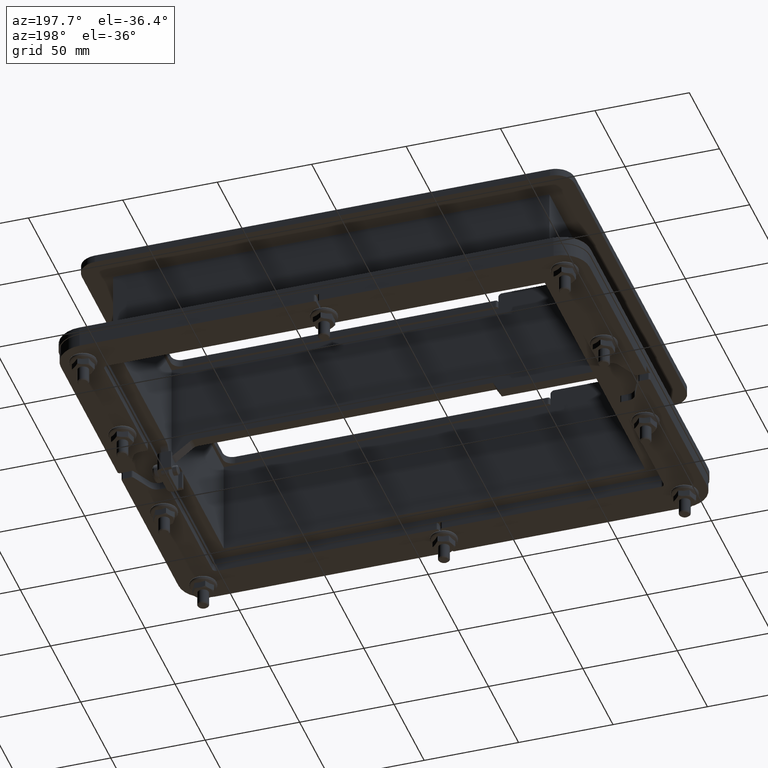
[diagram: clean part render]
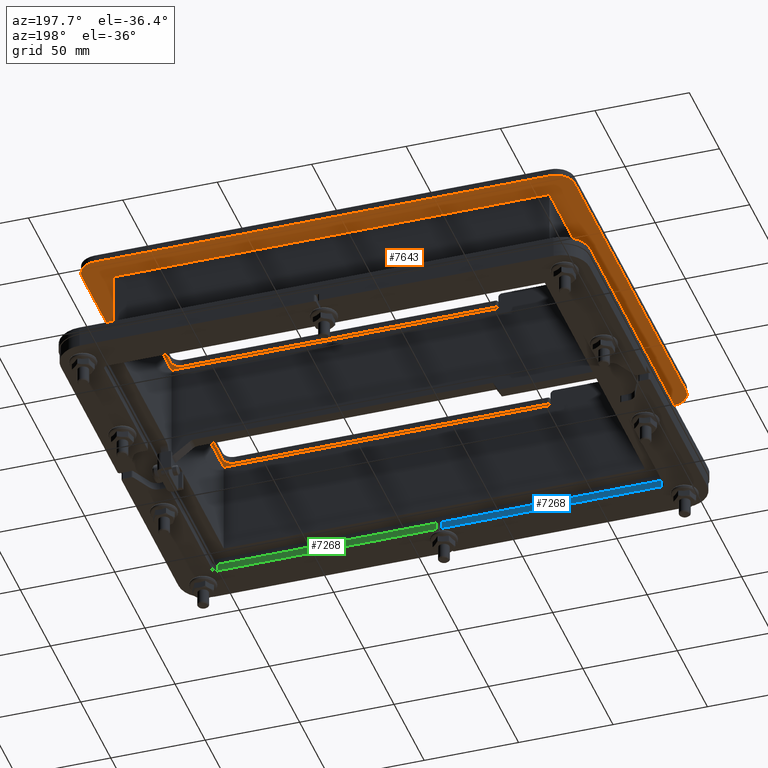
[diagram: same view with three faces highlighted in distinct colors, each labeled with its STEP entity id]
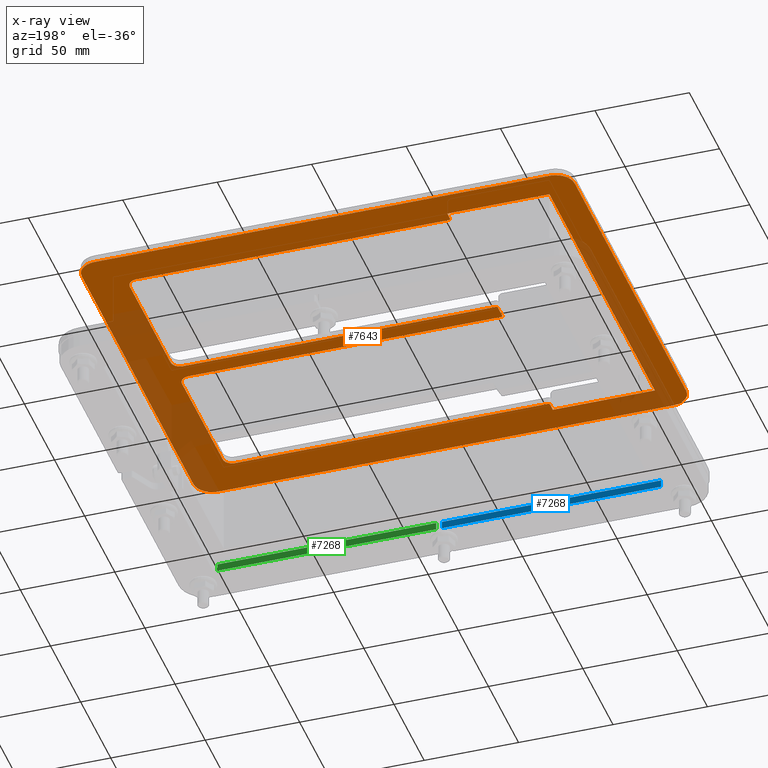
[diagram: x-ray of the same camera — body ghosted, the three highlighted faces saturated]
A machine part, auxiliary view with three faces highlighted in distinct colors.
The next image is the same camera in x-ray (body ghosted, the three faces saturated) — at least one of them is partly hidden behind the body in this view.
Their STEP definitions:

[orange] entity #7643 — the highlighted planar face has unit normal (0, -0, -1).
#525=FACE_BOUND('',#1636,.T.);
#758=PLANE('',#8488);
#1152=FACE_OUTER_BOUND('',#1635,.T.);
#1635=EDGE_LOOP('',(#7053,#7054,#7055,#7056,#7057,#7058,#7059,#7060));
#1636=EDGE_LOOP('',(#7061,#7062,#7063,#7064,#7065,#7066,#7067,#7068,#7069,
#7070,#7071,#7072,#7073,#7074,#7075,#7076,#7077,#7078,#7079,#7080));
#2339=LINE('',#13595,#3056);
#2341=LINE('',#13599,#3058);
#2342=LINE('',#13603,#3059);
#2343=LINE('',#13607,#3060);
#2344=LINE('',#13611,#3061);
#2345=LINE('',#13615,#3062);
#2346=LINE('',#13619,#3063);
#2347=LINE('',#13623,#3064);
#2348=LINE('',#13625,#3065);
#2349=LINE('',#13627,#3066);
#2350=LINE('',#13629,#3067);
#2351=LINE('',#13631,#3068);
#2352=LINE('',#13635,#3069);
#2353=LINE('',#13639,#3070);
#2354=LINE('',#13643,#3071);
#2355=LINE('',#13647,#3072);
#3056=VECTOR('',#10282,10.);
#3058=VECTOR('',#10286,10.);
#3059=VECTOR('',#10289,10.);
#3060=VECTOR('',#10292,10.);
#3061=VECTOR('',#10295,10.);
#3062=VECTOR('',#10298,10.);
#3063=VECTOR('',#10301,10.);
#3064=VECTOR('',#10304,10.);
#3065=VECTOR('',#10305,10.);
#3066=VECTOR('',#10306,10.);
#3067=VECTOR('',#10307,10.);
#3068=VECTOR('',#10308,10.);
#3069=VECTOR('',#10311,10.);
#3070=VECTOR('',#10314,10.);
#3071=VECTOR('',#10317,10.);
#3072=VECTOR('',#10320,10.);
#3276=CIRCLE('',#8486,10.);
#3277=CIRCLE('',#8489,10.);
#3278=CIRCLE('',#8490,10.);
#3279=CIRCLE('',#8491,10.);
#3280=CIRCLE('',#8492,5.);
#3281=CIRCLE('',#8493,5.);
#3282=CIRCLE('',#8494,1.);
#3283=CIRCLE('',#8495,1.);
#3284=CIRCLE('',#8496,5.);
#3285=CIRCLE('',#8497,5.);
#3286=CIRCLE('',#8498,1.);
#3287=CIRCLE('',#8499,1.);
#3969=VERTEX_POINT('',#13588);
#3970=VERTEX_POINT('',#13590);
#3971=VERTEX_POINT('',#13594);
#3972=VERTEX_POINT('',#13598);
#3973=VERTEX_POINT('',#13600);
#3974=VERTEX_POINT('',#13602);
#3975=VERTEX_POINT('',#13604);
#3976=VERTEX_POINT('',#13606);
#3977=VERTEX_POINT('',#13609);
#3978=VERTEX_POINT('',#13610);
#3979=VERTEX_POINT('',#13612);
#3980=VERTEX_POINT('',#13614);
#3981=VERTEX_POINT('',#13616);
#3982=VERTEX_POINT('',#13618);
#3983=VERTEX_POINT('',#13620);
#3984=VERTEX_POINT('',#13622);
#3985=VERTEX_POINT('',#13624);
#3986=VERTEX_POINT('',#13626);
#3987=VERTEX_POINT('',#13628);
#3988=VERTEX_POINT('',#13630);
#3989=VERTEX_POINT('',#13632);
#3990=VERTEX_POINT('',#13634);
#3991=VERTEX_POINT('',#13636);
#3992=VERTEX_POINT('',#13638);
#3993=VERTEX_POINT('',#13640);
#3994=VERTEX_POINT('',#13642);
#3995=VERTEX_POINT('',#13644);
#3996=VERTEX_POINT('',#13646);
#5007=EDGE_CURVE('',#3969,#3970,#3276,.T.);
#5009=EDGE_CURVE('',#3970,#3971,#2339,.T.);
#5011=EDGE_CURVE('',#3972,#3969,#2341,.T.);
#5012=EDGE_CURVE('',#3973,#3972,#3277,.T.);
#5013=EDGE_CURVE('',#3973,#3974,#2342,.F.);
#5014=EDGE_CURVE('',#3975,#3974,#3278,.T.);
#5015=EDGE_CURVE('',#3975,#3976,#2343,.F.);
#5016=EDGE_CURVE('',#3971,#3976,#3279,.T.);
#5017=EDGE_CURVE('',#3977,#3978,#2344,.F.);
#5018=EDGE_CURVE('',#3979,#3978,#3280,.T.);
#5019=EDGE_CURVE('',#3979,#3980,#2345,.F.);
#5020=EDGE_CURVE('',#3981,#3980,#3281,.T.);
#5021=EDGE_CURVE('',#3981,#3982,#2346,.T.);
#5022=EDGE_CURVE('',#3983,#3982,#3282,.T.);
#5023=EDGE_CURVE('',#3983,#3984,#2347,.F.);
#5024=EDGE_CURVE('',#3985,#3984,#2348,.T.);
#5025=EDGE_CURVE('',#3986,#3985,#2349,.T.);
#5026=EDGE_CURVE('',#3987,#3986,#2350,.T.);
#5027=EDGE_CURVE('',#3987,#3988,#2351,.F.);
#5028=EDGE_CURVE('',#3989,#3988,#3283,.T.);
#5029=EDGE_CURVE('',#3989,#3990,#2352,.T.);
#5030=EDGE_CURVE('',#3991,#3990,#3284,.T.);
#5031=EDGE_CURVE('',#3991,#3992,#2353,.F.);
#5032=EDGE_CURVE('',#3993,#3992,#3285,.T.);
#5033=EDGE_CURVE('',#3993,#3994,#2354,.F.);
#5034=EDGE_CURVE('',#3995,#3994,#3286,.T.);
#5035=EDGE_CURVE('',#3995,#3996,#2355,.F.);
#5036=EDGE_CURVE('',#3977,#3996,#3287,.T.);
#7053=ORIENTED_EDGE('',*,*,#5007,.F.);
#7054=ORIENTED_EDGE('',*,*,#5011,.F.);
#7055=ORIENTED_EDGE('',*,*,#5012,.F.);
#7056=ORIENTED_EDGE('',*,*,#5013,.T.);
#7057=ORIENTED_EDGE('',*,*,#5014,.F.);
#7058=ORIENTED_EDGE('',*,*,#5015,.T.);
#7059=ORIENTED_EDGE('',*,*,#5016,.F.);
#7060=ORIENTED_EDGE('',*,*,#5009,.F.);
#7061=ORIENTED_EDGE('',*,*,#5017,.T.);
#7062=ORIENTED_EDGE('',*,*,#5018,.F.);
#7063=ORIENTED_EDGE('',*,*,#5019,.T.);
#7064=ORIENTED_EDGE('',*,*,#5020,.F.);
#7065=ORIENTED_EDGE('',*,*,#5021,.T.);
#7066=ORIENTED_EDGE('',*,*,#5022,.F.);
#7067=ORIENTED_EDGE('',*,*,#5023,.T.);
#7068=ORIENTED_EDGE('',*,*,#5024,.F.);
#7069=ORIENTED_EDGE('',*,*,#5025,.F.);
#7070=ORIENTED_EDGE('',*,*,#5026,.F.);
#7071=ORIENTED_EDGE('',*,*,#5027,.T.);
#7072=ORIENTED_EDGE('',*,*,#5028,.F.);
#7073=ORIENTED_EDGE('',*,*,#5029,.T.);
#7074=ORIENTED_EDGE('',*,*,#5030,.F.);
#7075=ORIENTED_EDGE('',*,*,#5031,.T.);
#7076=ORIENTED_EDGE('',*,*,#5032,.F.);
#7077=ORIENTED_EDGE('',*,*,#5033,.T.);
#7078=ORIENTED_EDGE('',*,*,#5034,.F.);
#7079=ORIENTED_EDGE('',*,*,#5035,.T.);
#7080=ORIENTED_EDGE('',*,*,#5036,.F.);
#7643=ADVANCED_FACE('',(#1152,#525),#758,.T.);
#8486=AXIS2_PLACEMENT_3D('',#13591,#10277,#10278);
#8488=AXIS2_PLACEMENT_3D('',#13597,#10284,#10285);
#8489=AXIS2_PLACEMENT_3D('',#13601,#10287,#10288);
#8490=AXIS2_PLACEMENT_3D('',#13605,#10290,#10291);
#8491=AXIS2_PLACEMENT_3D('',#13608,#10293,#10294);
#8492=AXIS2_PLACEMENT_3D('',#13613,#10296,#10297);
#8493=AXIS2_PLACEMENT_3D('',#13617,#10299,#10300);
#8494=AXIS2_PLACEMENT_3D('',#13621,#10302,#10303);
#8495=AXIS2_PLACEMENT_3D('',#13633,#10309,#10310);
#8496=AXIS2_PLACEMENT_3D('',#13637,#10312,#10313);
#8497=AXIS2_PLACEMENT_3D('',#13641,#10315,#10316);
#8498=AXIS2_PLACEMENT_3D('',#13645,#10318,#10319);
#8499=AXIS2_PLACEMENT_3D('',#13648,#10321,#10322);
#10277=DIRECTION('center_axis',(0.,0.,1.));
#10278=DIRECTION('ref_axis',(-0.707106781186547,-0.707106781186547,0.));
#10282=DIRECTION('',(1.,1.03276560430247E-16,0.));
#10284=DIRECTION('center_axis',(0.,0.,-1.));
#10285=DIRECTION('ref_axis',(-1.,0.,0.));
#10286=DIRECTION('',(0.,-1.,0.));
#10287=DIRECTION('center_axis',(0.,0.,1.));
#10288=DIRECTION('ref_axis',(-0.707106781186547,0.707106781186547,0.));
#10289=DIRECTION('',(-1.,-5.16382802151236E-16,0.));
#10290=DIRECTION('center_axis',(0.,0.,1.));
#10291=DIRECTION('ref_axis',(0.707106781186547,0.707106781186547,0.));
#10292=DIRECTION('',(-3.04518315325757E-16,1.,0.));
#10293=DIRECTION('center_axis',(0.,0.,1.));
#10294=DIRECTION('ref_axis',(0.707106781186547,-0.707106781186547,0.));
#10295=DIRECTION('',(-1.,6.01928145881109E-17,0.));
#10296=DIRECTION('center_axis',(0.,0.,-1.));
#10297=DIRECTION('ref_axis',(0.707106781186548,-0.707106781186547,0.));
#10298=DIRECTION('',(1.77635683940025E-15,-1.,0.));
#10299=DIRECTION('center_axis',(0.,0.,-1.));
#10300=DIRECTION('ref_axis',(0.707106781186547,0.707106781186547,0.));
#10301=DIRECTION('',(-1.,-5.35047240783208E-16,0.));
#10302=DIRECTION('center_axis',(0.,0.,1.));
#10303=DIRECTION('ref_axis',(-0.707106781186548,-0.707106781186548,0.));
#10304=DIRECTION('',(2.22044604925031E-15,-1.,0.));
#10305=DIRECTION('',(1.,0.,0.));
#10306=DIRECTION('',(-2.03012210217171E-16,1.,0.));
#10307=DIRECTION('',(-1.,0.,0.));
#10308=DIRECTION('',(-2.22044604925031E-15,-1.,0.));
#10309=DIRECTION('center_axis',(0.,0.,1.));
#10310=DIRECTION('ref_axis',(-0.707106781186548,0.707106781186548,0.));
#10311=DIRECTION('',(1.,0.,0.));
#10312=DIRECTION('center_axis',(0.,0.,-1.));
#10313=DIRECTION('ref_axis',(0.707106781186547,-0.707106781186547,0.));
#10314=DIRECTION('',(1.77635683940025E-15,-1.,0.));
#10315=DIRECTION('center_axis',(0.,0.,-1.));
#10316=DIRECTION('ref_axis',(0.707106781186547,0.707106781186548,0.));
#10317=DIRECTION('',(1.,-1.77234398509438E-16,0.));
#10318=DIRECTION('center_axis',(0.,0.,1.));
#10319=DIRECTION('ref_axis',(-0.707106781186552,-0.707106781186543,0.));
#10320=DIRECTION('',(0.,-1.,0.));
#10321=DIRECTION('center_axis',(0.,0.,1.));
#10322=DIRECTION('ref_axis',(-0.707106781186553,0.707106781186542,0.));
#13588=CARTESIAN_POINT('',(-153.4,-92.5,-2.));
#13590=CARTESIAN_POINT('',(-143.4,-102.5,-2.));
#13591=CARTESIAN_POINT('Origin',(-143.4,-92.5,-2.));
#13594=CARTESIAN_POINT('',(97.6000000000001,-102.5,-2.));
#13595=CARTESIAN_POINT('',(-41.4999999999999,-102.5,-2.));
#13597=CARTESIAN_POINT('Origin',(8.88178419700125E-14,-1.11022302462516E-15,
-2.));
#13598=CARTESIAN_POINT('',(-153.4,92.5,-2.));
#13599=CARTESIAN_POINT('',(-153.4,-51.25,-2.));
#13600=CARTESIAN_POINT('',(-143.4,102.5,-2.));
#13601=CARTESIAN_POINT('Origin',(-143.4,92.5,-2.));
#13602=CARTESIAN_POINT('',(97.6000000000001,102.5,-2.));
#13603=CARTESIAN_POINT('',(44.5,102.5,-2.));
#13604=CARTESIAN_POINT('',(107.6,92.5000000000001,-2.));
#13605=CARTESIAN_POINT('Origin',(97.6000000000001,92.5000000000001,-2.));
#13606=CARTESIAN_POINT('',(107.6,-92.5,-2.));
#13607=CARTESIAN_POINT('',(107.6,-43.75,-2.));
#13608=CARTESIAN_POINT('Origin',(97.6000000000001,-92.5,-2.));
#13609=CARTESIAN_POINT('',(-83.3999999999999,4.5,-2.));
#13610=CARTESIAN_POINT('',(82.1000000000001,4.49999999999999,-2.));
#13611=CARTESIAN_POINT('',(41.5000000000001,4.49999999999999,-2.));
#13612=CARTESIAN_POINT('',(87.1000000000001,9.5,-2.));
#13613=CARTESIAN_POINT('Origin',(82.1000000000001,9.49999999999999,-2.));
#13614=CARTESIAN_POINT('',(87.0999999999999,77.,-2.));
#13615=CARTESIAN_POINT('',(87.1000000000001,2.50000000000007,-2.));
#13616=CARTESIAN_POINT('',(82.0999999999999,82.,-2.));
#13617=CARTESIAN_POINT('Origin',(82.0999999999999,77.,-2.));
#13618=CARTESIAN_POINT('',(-83.3999999999999,81.9999999999999,-2.));
#13619=CARTESIAN_POINT('',(-41.4999999999999,81.9999999999999,-2.));
#13620=CARTESIAN_POINT('',(-84.3999999999999,82.9999999999999,-2.));
#13621=CARTESIAN_POINT('Origin',(-83.3999999999999,82.9999999999999,-2.));
#13622=CARTESIAN_POINT('',(-84.3999999999999,87.5,-2.));
#13623=CARTESIAN_POINT('',(-84.3999999999998,43.7499999999999,-2.));
#13624=CARTESIAN_POINT('',(-138.4,87.5,-2.));
#13625=CARTESIAN_POINT('',(-100.85,87.5,-2.));
#13626=CARTESIAN_POINT('',(-138.4,-87.5,-2.));
#13627=CARTESIAN_POINT('',(-138.4,43.75,-2.));
#13628=CARTESIAN_POINT('',(-84.3999999999999,-87.5,-2.));
#13629=CARTESIAN_POINT('',(-127.85,-87.5,-2.));
#13630=CARTESIAN_POINT('',(-84.3999999999999,-83.,-2.));
#13631=CARTESIAN_POINT('',(-84.3999999999998,-39.7499999999999,-2.));
#13632=CARTESIAN_POINT('',(-83.3999999999999,-82.,-2.));
#13633=CARTESIAN_POINT('Origin',(-83.3999999999999,-83.,-2.));
#13634=CARTESIAN_POINT('',(82.1000000000002,-82.,-2.));
#13635=CARTESIAN_POINT('',(41.5000000000001,-82.,-2.));
#13636=CARTESIAN_POINT('',(87.1000000000002,-77.,-2.));
#13637=CARTESIAN_POINT('Origin',(82.1000000000002,-77.,-2.));
#13638=CARTESIAN_POINT('',(87.1000000000001,-9.5,-2.));
#13639=CARTESIAN_POINT('',(87.1000000000001,2.50000000000007,-2.));
#13640=CARTESIAN_POINT('',(82.1000000000001,-4.50000000000001,-2.));
#13641=CARTESIAN_POINT('Origin',(82.1000000000001,-9.50000000000001,-2.));
#13642=CARTESIAN_POINT('',(-83.3999999999999,-4.49999999999998,-2.));
#13643=CARTESIAN_POINT('',(-41.4999999999999,-4.49999999999999,-2.));
#13644=CARTESIAN_POINT('',(-84.3999999999999,-3.49999999999998,-2.));
#13645=CARTESIAN_POINT('Origin',(-83.3999999999999,-3.49999999999998,-2.));
#13646=CARTESIAN_POINT('',(-84.3999999999999,3.5,-2.));
#13647=CARTESIAN_POINT('',(-84.3999999999999,2.5,-2.));
#13648=CARTESIAN_POINT('Origin',(-83.3999999999999,3.5,-2.));

[blue] entity #7268 — the highlighted planar face has unit normal (0, 1, -0).
#527=PLANE('',#7984);
#777=FACE_OUTER_BOUND('',#1184,.T.);
#1184=EDGE_LOOP('',(#5088,#5089,#5090,#5091));
#1664=LINE('',#10481,#2381);
#1666=LINE('',#10487,#2383);
#1675=LINE('',#10529,#2392);
#1676=LINE('',#10530,#2393);
#2381=VECTOR('',#8571,10.);
#2383=VECTOR('',#8577,10.);
#2392=VECTOR('',#8612,10.);
#2393=VECTOR('',#8613,10.);
#3289=VERTEX_POINT('',#10478);
#3290=VERTEX_POINT('',#10480);
#3292=VERTEX_POINT('',#10486);
#3312=VERTEX_POINT('',#10528);
#3998=EDGE_CURVE('',#3289,#3290,#1664,.T.);
#4001=EDGE_CURVE('',#3290,#3292,#1666,.F.);
#4022=EDGE_CURVE('',#3312,#3289,#1675,.F.);
#4023=EDGE_CURVE('',#3292,#3312,#1676,.T.);
#5088=ORIENTED_EDGE('',*,*,#3998,.F.);
#5089=ORIENTED_EDGE('',*,*,#4022,.F.);
#5090=ORIENTED_EDGE('',*,*,#4023,.F.);
#5091=ORIENTED_EDGE('',*,*,#4001,.F.);
#7268=ADVANCED_FACE('',(#777),#527,.T.);
#7984=AXIS2_PLACEMENT_3D('',#10527,#8610,#8611);
#8571=DIRECTION('',(0.,-1.,0.));
#8577=DIRECTION('',(1.,0.,0.));
#8610=DIRECTION('center_axis',(0.,0.,1.));
#8611=DIRECTION('ref_axis',(1.,0.,0.));
#8612=DIRECTION('',(-1.,0.,0.));
#8613=DIRECTION('',(0.,1.,0.));
#10478=CARTESIAN_POINT('',(-1.49999999999995,2.,-80.5));
#10480=CARTESIAN_POINT('',(-1.49999999999995,-2.,-80.5));
#10481=CARTESIAN_POINT('',(-1.49999999999995,1.0005,-80.5));
#10486=CARTESIAN_POINT('',(-117.5,-2.,-80.5));
#10487=CARTESIAN_POINT('',(-47.3179809358752,-2.,-80.5));
#10527=CARTESIAN_POINT('Origin',(-119.1,0.,-80.5));
#10528=CARTESIAN_POINT('',(-117.5,2.,-80.5));
#10529=CARTESIAN_POINT('',(-47.3179809358752,2.,-80.5));
#10530=CARTESIAN_POINT('',(-117.5,0.,-80.5));

[green] entity #7268 — the highlighted planar face has unit normal (0, 1, -0).
#527=PLANE('',#7984);
#777=FACE_OUTER_BOUND('',#1184,.T.);
#1184=EDGE_LOOP('',(#5088,#5089,#5090,#5091));
#1664=LINE('',#10481,#2381);
#1666=LINE('',#10487,#2383);
#1675=LINE('',#10529,#2392);
#1676=LINE('',#10530,#2393);
#2381=VECTOR('',#8571,10.);
#2383=VECTOR('',#8577,10.);
#2392=VECTOR('',#8612,10.);
#2393=VECTOR('',#8613,10.);
#3289=VERTEX_POINT('',#10478);
#3290=VERTEX_POINT('',#10480);
#3292=VERTEX_POINT('',#10486);
#3312=VERTEX_POINT('',#10528);
#3998=EDGE_CURVE('',#3289,#3290,#1664,.T.);
#4001=EDGE_CURVE('',#3290,#3292,#1666,.F.);
#4022=EDGE_CURVE('',#3312,#3289,#1675,.F.);
#4023=EDGE_CURVE('',#3292,#3312,#1676,.T.);
#5088=ORIENTED_EDGE('',*,*,#3998,.F.);
#5089=ORIENTED_EDGE('',*,*,#4022,.F.);
#5090=ORIENTED_EDGE('',*,*,#4023,.F.);
#5091=ORIENTED_EDGE('',*,*,#4001,.F.);
#7268=ADVANCED_FACE('',(#777),#527,.T.);
#7984=AXIS2_PLACEMENT_3D('',#10527,#8610,#8611);
#8571=DIRECTION('',(0.,-1.,0.));
#8577=DIRECTION('',(1.,0.,0.));
#8610=DIRECTION('center_axis',(0.,0.,1.));
#8611=DIRECTION('ref_axis',(1.,0.,0.));
#8612=DIRECTION('',(-1.,0.,0.));
#8613=DIRECTION('',(0.,1.,0.));
#10478=CARTESIAN_POINT('',(-1.49999999999995,2.,-80.5));
#10480=CARTESIAN_POINT('',(-1.49999999999995,-2.,-80.5));
#10481=CARTESIAN_POINT('',(-1.49999999999995,1.0005,-80.5));
#10486=CARTESIAN_POINT('',(-117.5,-2.,-80.5));
#10487=CARTESIAN_POINT('',(-47.3179809358752,-2.,-80.5));
#10527=CARTESIAN_POINT('Origin',(-119.1,0.,-80.5));
#10528=CARTESIAN_POINT('',(-117.5,2.,-80.5));
#10529=CARTESIAN_POINT('',(-47.3179809358752,2.,-80.5));
#10530=CARTESIAN_POINT('',(-117.5,0.,-80.5));